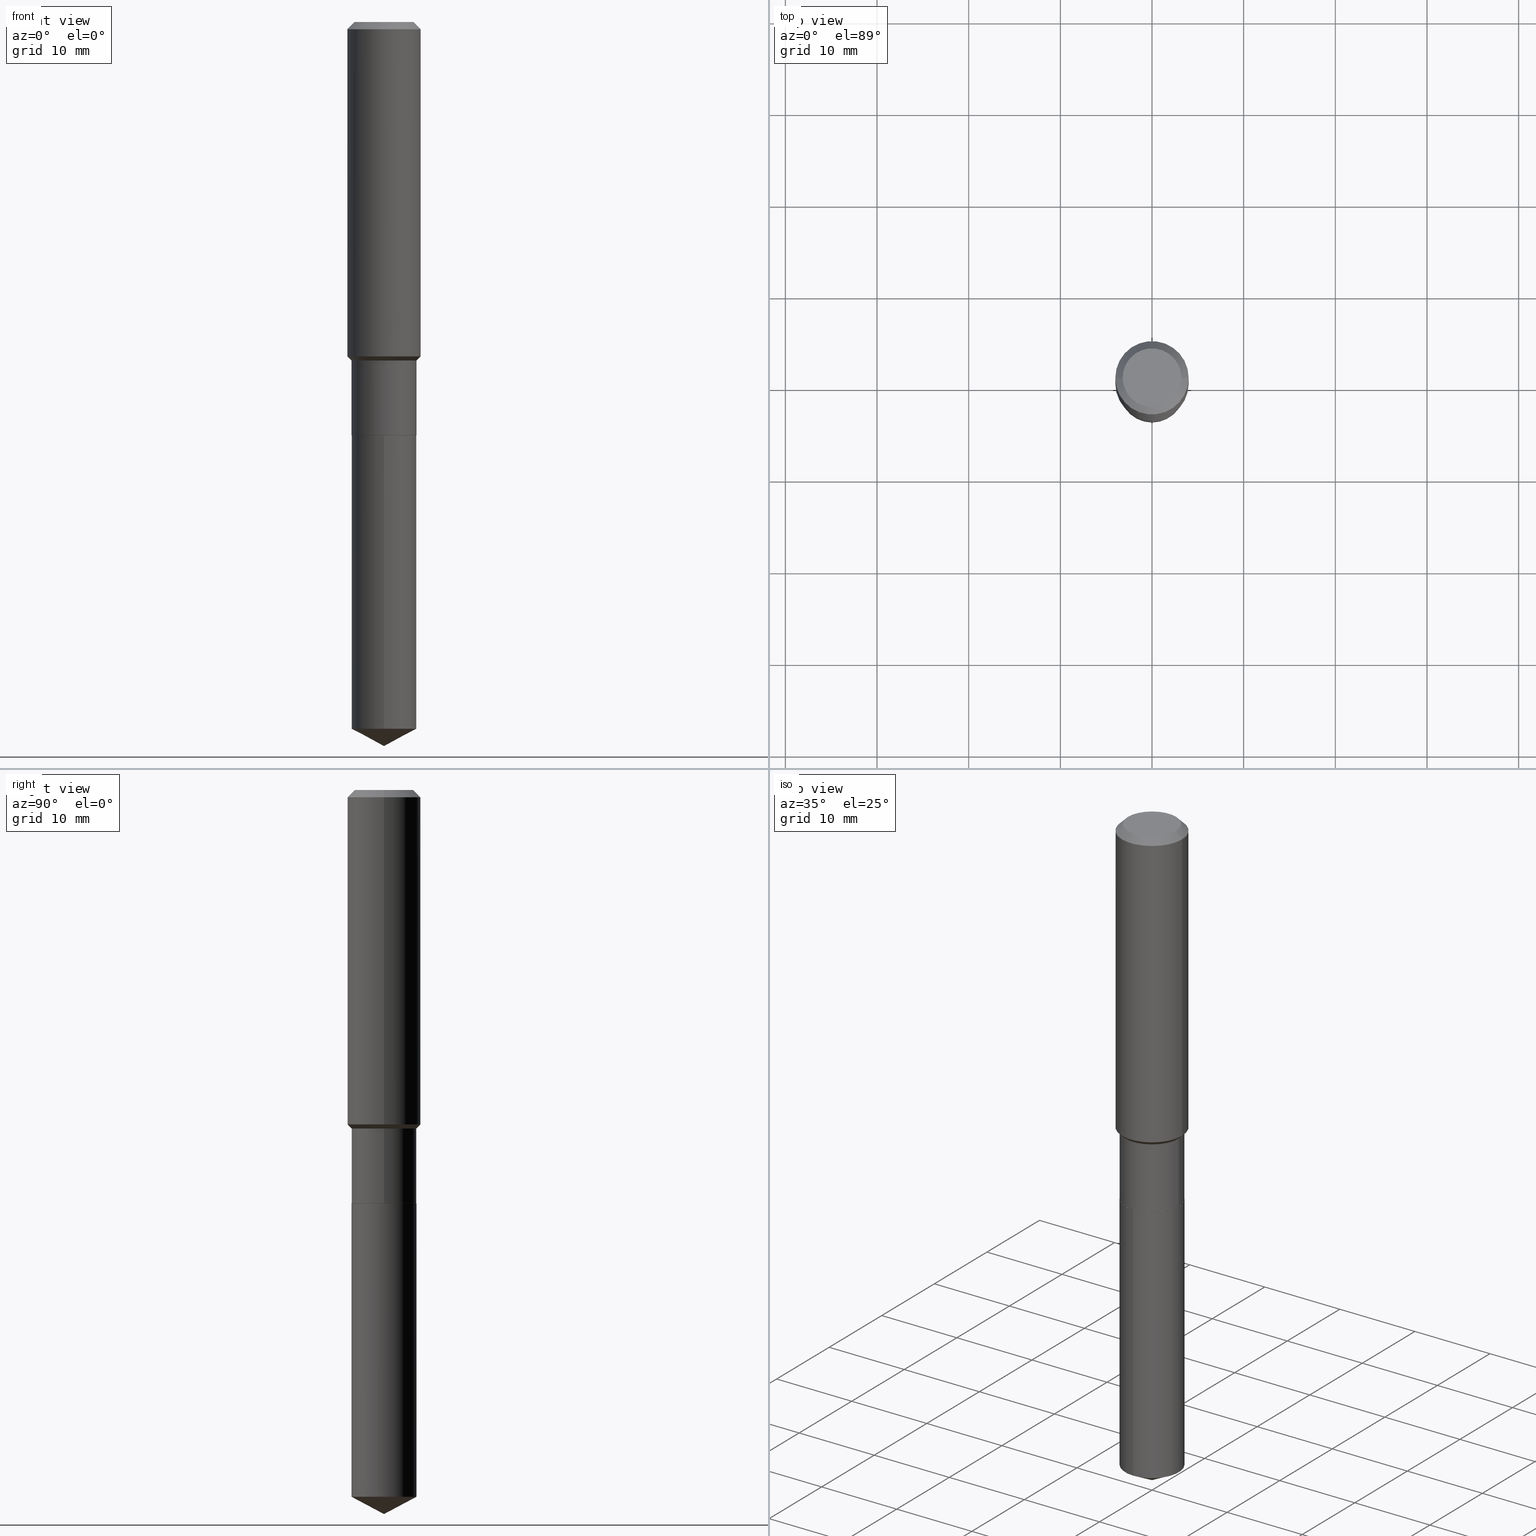
[diagram: canonical four-view strip — front | top / right | iso, engineering-drawing reading convention]
A machine part, canonical four-view strip (front | top / right | iso — engineering-drawing reading convention). The complete STEP part file that produces these views, byte-faithful:
ISO-10303-21;
HEADER;
FILE_DESCRIPTION (( 'STEP AP203' ),
    '1' );
FILE_NAME ('64641.STEP',
    '2024-04-24T18:32:47',
    ( '' ),
    ( '' ),
    'SwSTEP 2.0',
    'SolidWorks 2023',
    '' );
FILE_SCHEMA (( 'CONFIG_CONTROL_DESIGN' ));
ENDSEC;

DATA;
#1 = EDGE_CURVE ( 'NONE', #146, #72, #382, .T. ) ;
#2 = LINE ( 'NONE', #59, #132 ) ;
#3 = EDGE_CURVE ( 'NONE', #360, #380, #154, .T. ) ;
#4 = AXIS2_PLACEMENT_3D ( 'NONE', #18, #473, #225 ) ;
#5 = EDGE_CURVE ( 'NONE', #110, #112, #356, .T. ) ;
#6 = ADVANCED_FACE ( 'NONE', ( #369 ), #65, .T. ) ;
#7 = DIRECTION ( 'NONE',  ( -1.000000000000000000, 6.982962677686265922E-15, -4.876176775795935793E-29 ) ) ;
#8 = DIRECTION ( 'NONE',  ( -2.438088387897960049E-29, 3.491481338843145188E-15, 1.000000000000000000 ) ) ;
#9 = VERTEX_POINT ( 'NONE', #49 ) ;
#10 = ORIENTED_EDGE ( 'NONE', *, *, #5, .F. ) ;
#11 = CARTESIAN_POINT ( 'NONE',  ( 4.340707130978617347E-29, -6.197379376446583794E-15, -1.775000000000000133 ) ) ;
#12 = AXIS2_PLACEMENT_3D ( 'NONE', #344, #17, #315 ) ;
#13 = LINE ( 'NONE', #167, #375 ) ;
#14 = DIRECTION ( 'NONE',  ( -2.445468806185136597E-29, 3.491481338843145583E-15, 1.000000000000000000 ) ) ;
#15 = CARTESIAN_POINT ( 'NONE',  ( -8.866753248590977221E-28, 1.266076639284877967E-13, 36.25987874015748247 ) ) ;
#16 = ORIENTED_EDGE ( 'NONE', *, *, #46, .F. ) ;
#17 = DIRECTION ( 'NONE',  ( -2.445468806185136597E-29, 3.491481338843145583E-15, 1.000000000000000000 ) ) ;
#18 = CARTESIAN_POINT ( 'NONE',  ( -8.866753248590977221E-28, 1.266076639284877967E-13, 36.25987874015748247 ) ) ;
#19 = VECTOR ( 'NONE', #48, 39.37007874015748143 ) ;
#20 = ADVANCED_FACE ( 'NONE', ( #209 ), #113, .T. ) ;
#21 = VERTEX_POINT ( 'NONE', #301 ) ;
#22 = DIRECTION ( 'NONE',  ( -6.982962677686265133E-15, -1.000000000000000000, 3.909621457837943227E-15 ) ) ;
#23 = ORIENTED_EDGE ( 'NONE', *, *, #158, .F. ) ;
#24 = DIRECTION ( 'NONE',  ( 1.000000000000000000, -6.982962677686265922E-15, 4.876281427513067258E-29 ) ) ;
#25 = CARTESIAN_POINT ( 'NONE',  ( -0.1575000000000001676, -3.895884412225194097E-15, -1.436350000000000016 ) ) ;
#26 = DIRECTION ( 'NONE',  ( -2.445340770409964636E-29, 3.491664693360535590E-15, 1.000000000000000000 ) ) ;
#27 = PERSON_AND_ORGANIZATION_ROLE ( 'classification_officer' ) ;
#28 = FACE_OUTER_BOUND ( 'NONE', #148, .T. ) ;
#29 = EDGE_CURVE ( 'NONE', #108, #215, #160, .T. ) ;
#30 = APPROVAL_ROLE ( '' ) ;
#31 = ORIENTED_EDGE ( 'NONE', *, *, #78, .T. ) ;
#32 = VECTOR ( 'NONE', #285, 39.37007874015748854 ) ;
#33 = EDGE_CURVE ( 'NONE', #21, #108, #151, .T. ) ;
#34 = MECHANICAL_CONTEXT ( 'NONE', #280, 'mechanical' ) ;
#35 = CARTESIAN_POINT ( 'NONE',  ( 7.605498864129072648E-29, -1.085977552928993678E-14, -3.110199999999999854 ) ) ;
#36 = DIRECTION ( 'NONE',  ( 1.000000000000000000, -6.982962677686265922E-15, 0.000000000000000000 ) ) ;
#37 = DIRECTION ( 'NONE',  ( -2.445468806185136597E-29, 3.491481338843145583E-15, 1.000000000000000000 ) ) ;
#38 = ORIENTED_EDGE ( 'NONE', *, *, #118, .T. ) ;
#39 = UNCERTAINTY_MEASURE_WITH_UNIT (LENGTH_MEASURE( 1.000000000000000082E-05 ), #238, 'distance_accuracy_value', 'NONE');
#40 = EDGE_CURVE ( 'NONE', #21, #289, #488, .T. ) ;
#41 = CARTESIAN_POINT ( 'NONE',  ( 7.703226739483228723E-31, -1.099816621735597661E-16, -0.03150000000000019451 ) ) ;
#42 = ADVANCED_FACE ( 'NONE', ( #452 ), #104, .T. ) ;
#43 = AXIS2_PLACEMENT_3D ( 'NONE', #195, #84, #341 ) ;
#44 = FACE_OUTER_BOUND ( 'NONE', #291, .T. ) ;
#45 = DIRECTION ( 'NONE',  ( -6.982962677686265133E-15, -1.000000000000000000, 3.909621457837943227E-15 ) ) ;
#46 = EDGE_CURVE ( 'NONE', #289, #215, #359, .T. ) ;
#47 = AXIS2_PLACEMENT_3D ( 'NONE', #64, #283, #139 ) ;
#48 = DIRECTION ( 'NONE',  ( 0.7071067811863905872, -2.468850131080613074E-15, 0.7071067811867044473 ) ) ;
#49 = CARTESIAN_POINT ( 'NONE',  ( -9.758690342066122119E-16, -0.1397500000000062026, -1.775499999999999412 ) ) ;
#50 =( NAMED_UNIT ( * ) PLANE_ANGLE_UNIT ( ) SI_UNIT ( $, .RADIAN. ) );
#51 = DIRECTION ( 'NONE',  ( 1.000000000000000000, -6.982962677686269077E-15, 0.000000000000000000 ) ) ;
#52 = FACE_OUTER_BOUND ( 'NONE', #103, .T. ) ;
#53 = VECTOR ( 'NONE', #410, 39.37007874015748143 ) ;
#54 = AXIS2_PLACEMENT_3D ( 'NONE', #378, #377, #300 ) ;
#55 = ORIENTED_EDGE ( 'NONE', *, *, #5, .T. ) ;
#56 = EDGE_LOOP ( 'NONE', ( #446, #296 ) ) ;
#57 = ORIENTED_EDGE ( 'NONE', *, *, #33, .T. ) ;
#58 = CARTESIAN_POINT ( 'NONE',  ( 1.909604190169210274E-29, -9.682353923400312483E-15, -1.775500000000000300 ) ) ;
#59 = CARTESIAN_POINT ( 'NONE',  ( 0.1397499999999999298, -6.052832049018473832E-15, -1.454100000000000170 ) ) ;
#60 = CARTESIAN_POINT ( 'NONE',  ( 0.000000000000000000, 0.000000000000000000, 0.000000000000000000 ) ) ;
#61 = APPLICATION_CONTEXT ( 'configuration controlled 3d designs of mechanical parts and assemblies' ) ;
#62 = ORIENTED_EDGE ( 'NONE', *, *, #235, .F. ) ;
#63 = APPLICATION_PROTOCOL_DEFINITION ( 'international standard', 'config_control_design', 1994, #280 ) ;
#64 = CARTESIAN_POINT ( 'NONE',  ( 0.000000000000000000, 0.000000000000000000, 0.000000000000000000 ) ) ;
#65 = CONICAL_SURFACE ( 'NONE', #205, 0.1392500000000000127, 0.7853981633972263454 ) ;
#66 = PRODUCT_DEFINITION_FORMATION_WITH_SPECIFIED_SOURCE ( 'ANY', '', #121, .NOT_KNOWN. ) ;
#67 = FACE_OUTER_BOUND ( 'NONE', #246, .T. ) ;
#68 = APPROVAL_STATUS ( 'not_yet_approved' ) ;
#69 = ORIENTED_EDGE ( 'NONE', *, *, #486, .F. ) ;
#70 = COORDINATED_UNIVERSAL_TIME_OFFSET ( 5, 0, .BEHIND. ) ;
#71 = CARTESIAN_POINT ( 'NONE',  ( -0.1392500000000000127, -5.209694357570065896E-15, -1.775500000000000300 ) ) ;
#72 = VERTEX_POINT ( 'NONE', #245 ) ;
#73 = ORIENTED_EDGE ( 'NONE', *, *, #355, .T. ) ;
#74 = ORIENTED_EDGE ( 'NONE', *, *, #275, .T. ) ;
#75 = CIRCLE ( 'NONE', #114, 0.1397499999999999853 ) ;
#76 = FACE_OUTER_BOUND ( 'NONE', #254, .T. ) ;
#77 = DIRECTION ( 'NONE',  ( -6.982962677686266711E-15, -1.000000000000000000, 3.541896320645571124E-15 ) ) ;
#78 = EDGE_CURVE ( 'NONE', #403, #72, #265, .T. ) ;
#79 = CARTESIAN_POINT ( 'NONE',  ( 9.929834732248144530E-16, 0.1397499999999938236, -1.775500000000000522 ) ) ;
#80 = AXIS2_PLACEMENT_3D ( 'NONE', #318, #438, #478 ) ;
#81 = CONICAL_SURFACE ( 'NONE', #489, 0.1575000000000000011, 0.7853981633974449483 ) ;
#82 = CARTESIAN_POINT ( 'NONE',  ( 4.341929865381710149E-29, -6.199125117116004508E-15, -1.775499999999999856 ) ) ;
#83 = CC_DESIGN_DATE_AND_TIME_ASSIGNMENT ( #284, #372, ( #396 ) ) ;
#84 = DIRECTION ( 'NONE',  ( -2.445468806185136597E-29, 3.491481338843145583E-15, 1.000000000000000000 ) ) ;
#85 = CARTESIAN_POINT ( 'NONE',  ( -4.719860820353100843E-47, 6.738710358733633822E-33, 1.930043355456229866E-18 ) ) ;
#86 = CARTESIAN_POINT ( 'NONE',  ( 4.341929865381710709E-29, -6.199125117116005297E-15, -1.775500000000000300 ) ) ;
#87 = CARTESIAN_POINT ( 'NONE',  ( -0.1575000000000000011, 9.898349595620272334E-16, -0.03150000000000019451 ) ) ;
#88 = VECTOR ( 'NONE', #274, 39.37007874015748143 ) ;
#89 = APPROVAL_PERSON_ORGANIZATION ( #326, #342, #30 ) ;
#90 = DIRECTION ( 'NONE',  ( -2.445340770409964636E-29, 3.491664693360535195E-15, 1.000000000000000000 ) ) ;
#91 = DIMENSIONAL_EXPONENTS ( 1.000000000000000000, 0.000000000000000000, 0.000000000000000000, 0.000000000000000000, 0.000000000000000000, 0.000000000000000000, 0.000000000000000000 ) ;
#92 = EDGE_CURVE ( 'NONE', #289, #262, #175, .T. ) ;
#93 = ORIENTED_EDGE ( 'NONE', *, *, #116, .F. ) ;
#94 = DIRECTION ( 'NONE',  ( 1.000000000000000000, -6.982962677686265922E-15, 4.876176775795935793E-29 ) ) ;
#95 = EDGE_LOOP ( 'NONE', ( #228, #485, #400, #334 ) ) ;
#96 = CARTESIAN_POINT ( 'NONE',  ( -0.1260000000000000009, 9.348441284752484904E-16, 3.860086710906114178E-18 ) ) ;
#97 = CIRCLE ( 'NONE', #123, 0.1397499999999999298 ) ;
#98 = APPROVAL_PERSON_ORGANIZATION ( #101, #163, #172 ) ;
#99 = CC_DESIGN_PERSON_AND_ORGANIZATION_ASSIGNMENT ( #481, #176, ( #66 ) ) ;
#100 = ORIENTED_EDGE ( 'NONE', *, *, #187, .T. ) ;
#101 = PERSON_AND_ORGANIZATION ( #391, #197 ) ;
#102 = ADVANCED_FACE ( 'NONE', ( #67 ), #219, .T. ) ;
#103 = EDGE_LOOP ( 'NONE', ( #330, #100 ) ) ;
#104 = CYLINDRICAL_SURFACE ( 'NONE', #80, 0.1397500000000000131 ) ;
#105 = DIRECTION ( 'NONE',  ( 0.000000000000000000, 0.000000000000000000, 1.000000000000000000 ) ) ;
#106 = CIRCLE ( 'NONE', #384, 0.1397500000000000131 ) ;
#107 = SECURITY_CLASSIFICATION_LEVEL ( 'unclassified' ) ;
#108 = VERTEX_POINT ( 'NONE', #462 ) ;
#109 = CARTESIAN_POINT ( 'NONE',  ( 0.000000000000000000, 0.000000000000000000, 0.000000000000000000 ) ) ;
#110 = VERTEX_POINT ( 'NONE', #387 ) ;
#111 = DIRECTION ( 'NONE',  ( -0.7071067811863905872, 7.493145998869786180E-15, 0.7071067811867044473 ) ) ;
#112 = VERTEX_POINT ( 'NONE', #454 ) ;
#113 = CONICAL_SURFACE ( 'NONE', #442, 74.04434902938332641, 1.082104136236485381 ) ;
#114 = AXIS2_PLACEMENT_3D ( 'NONE', #11, #198, #348 ) ;
#115 = CC_DESIGN_DATE_AND_TIME_ASSIGNMENT ( #440, #276, ( #328 ) ) ;
#116 = EDGE_CURVE ( 'NONE', #112, #380, #190, .T. ) ;
#117 = DIRECTION ( 'NONE',  ( -2.445468806185136597E-29, 3.491481338843145583E-15, 1.000000000000000000 ) ) ;
#118 = EDGE_CURVE ( 'NONE', #9, #214, #106, .T. ) ;
#119 = AXIS2_PLACEMENT_3D ( 'NONE', #221, #402, #248 ) ;
#120 = FACE_OUTER_BOUND ( 'NONE', #126, .T. ) ;
#121 = PRODUCT ( '64641', '64641', '', ( #34 ) ) ;
#122 = DIRECTION ( 'NONE',  ( 1.000000000000000000, -6.982962677686267499E-15, 0.000000000000000000 ) ) ;
#123 = AXIS2_PLACEMENT_3D ( 'NONE', #308, #467, #51 ) ;
#124 = CARTESIAN_POINT ( 'NONE',  ( 9.929834732248142558E-16, 0.1397499999999894382, -3.035893606925309296 ) ) ;
#125 = EDGE_CURVE ( 'NONE', #262, #110, #191, .T. ) ;
#126 = EDGE_LOOP ( 'NONE', ( #450, #332, #346, #130 ) ) ;
#127 = DIRECTION ( 'NONE',  ( 2.438088387897960049E-29, -3.491481338843145188E-15, -1.000000000000000000 ) ) ;
#128 = DIRECTION ( 'NONE',  ( -2.445468806185136597E-29, 3.491481338843145583E-15, 1.000000000000000000 ) ) ;
#129 = ADVANCED_FACE ( 'NONE', ( #120 ), #327, .T. ) ;
#130 = ORIENTED_EDGE ( 'NONE', *, *, #3, .F. ) ;
#131 = CARTESIAN_POINT ( 'NONE',  ( -0.1575000000000000011, -1.443380632788297581E-15, -0.03150000000000019451 ) ) ;
#132 = VECTOR ( 'NONE', #134, 39.37007874015748143 ) ;
#133 = PERSON_AND_ORGANIZATION ( #391, #197 ) ;
#134 = DIRECTION ( 'NONE',  ( 0.7071067811865499042, -2.468850131082281515E-15, 0.7071067811865451302 ) ) ;
#135 = ORIENTED_EDGE ( 'NONE', *, *, #270, .T. ) ;
#136 = DIRECTION ( 'NONE',  ( -6.982962677686265133E-15, -1.000000000000000000, 3.909621457837943227E-15 ) ) ;
#137 = ORIENTED_EDGE ( 'NONE', *, *, #125, .T. ) ;
#138 = APPROVAL_DATE_TIME ( #435, #316 ) ;
#139 = DIRECTION ( 'NONE',  ( 1.000000000000000000, -6.982962677686265922E-15, 4.876176775795935232E-29 ) ) ;
#140 = CLOSED_SHELL ( 'NONE', ( #102, #20, #269, #42, #212 ) ) ;
#141 = CIRCLE ( 'NONE', #226, 0.1575000000000001676 ) ;
#142 = CARTESIAN_POINT ( 'NONE',  ( 3.555956191073807244E-29, -5.076963014811818627E-15, -1.454100000000000170 ) ) ;
#143 = ORIENTED_EDGE ( 'NONE', *, *, #347, .F. ) ;
#144 = CALENDAR_DATE ( 2024, 24, 4 ) ;
#145 = MANIFOLD_SOLID_BREP ( 'Body-Move/Copy2[2]', #250 ) ;
#146 = VERTEX_POINT ( 'NONE', #421 ) ;
#147 = ORIENTED_EDGE ( 'NONE', *, *, #486, .T. ) ;
#148 = EDGE_LOOP ( 'NONE', ( #461, #62, #471, #417 ) ) ;
#149 = CARTESIAN_POINT ( 'NONE',  ( -0.1397499999999999298, -4.644187722404462094E-15, -1.454100000000000170 ) ) ;
#150 = ADVANCED_FACE ( 'NONE', ( #44 ), #383, .T. ) ;
#151 = CIRCLE ( 'NONE', #173, 0.1397499999999999853 ) ;
#152 = AXIS2_PLACEMENT_3D ( 'NONE', #302, #455, #268 ) ;
#153 = CARTESIAN_POINT ( 'NONE',  ( -0.1397499999999999576, 9.929834732247397084E-16, -6.874211788631229584E-30 ) ) ;
#154 = LINE ( 'NONE', #87, #433 ) ;
#155 = DIRECTION ( 'NONE',  ( -1.000000000000000000, 6.982962677686265922E-15, 0.000000000000000000 ) ) ;
#156 = DIRECTION ( 'NONE',  ( 1.000000000000000000, -6.982962677686265922E-15, 0.000000000000000000 ) ) ;
#157 = FACE_OUTER_BOUND ( 'NONE', #317, .T. ) ;
#158 = EDGE_CURVE ( 'NONE', #380, #112, #426, .T. ) ;
#159 =( GEOMETRIC_REPRESENTATION_CONTEXT ( 3 ) GLOBAL_UNCERTAINTY_ASSIGNED_CONTEXT ( ( #39 ) ) GLOBAL_UNIT_ASSIGNED_CONTEXT ( ( #238, #50, #213 ) ) REPRESENTATION_CONTEXT ( 'NONE', 'WORKASPACE' ) );
#160 = LINE ( 'NONE', #229, #476 ) ;
#161 = PLANE ( 'NONE',  #237 ) ;
#162 = ADVANCED_BREP_SHAPE_REPRESENTATION ( '64641', ( #292, #145, #490 ), #159 ) ;
#163 = APPROVAL ( #68, 'UNSPECIFIED' ) ;
#164 = CARTESIAN_POINT ( 'NONE',  ( 0.1392500000000000127, -7.171502669983817495E-15, -1.775500000000000300 ) ) ;
#165 = AXIS2_PLACEMENT_3D ( 'NONE', #386, #37, #192 ) ;
#166 = DIRECTION ( 'NONE',  ( -2.445468806185136597E-29, 3.491481338843145583E-15, 1.000000000000000000 ) ) ;
#167 = CARTESIAN_POINT ( 'NONE',  ( -9.758690342066122119E-16, -0.1397500000000062026, -1.775499999999999412 ) ) ;
#168 = EDGE_CURVE ( 'NONE', #146, #403, #368, .T. ) ;
#169 = DIRECTION ( 'NONE',  ( 1.000000000000000000, -6.982962677686267499E-15, 0.000000000000000000 ) ) ;
#170 = ORIENTED_EDGE ( 'NONE', *, *, #441, .T. ) ;
#171 = DIRECTION ( 'NONE',  ( -2.445468806185136597E-29, 3.491481338843145583E-15, 1.000000000000000000 ) ) ;
#172 = APPROVAL_ROLE ( '' ) ;
#173 = AXIS2_PLACEMENT_3D ( 'NONE', #260, #381, #36 ) ;
#174 = AXIS2_PLACEMENT_3D ( 'NONE', #409, #177, #251 ) ;
#175 = LINE ( 'NONE', #320, #303 ) ;
#176 = PERSON_AND_ORGANIZATION_ROLE ( 'creator' ) ;
#177 = DIRECTION ( 'NONE',  ( -2.445340770409964636E-29, 3.491664693360535590E-15, 1.000000000000000000 ) ) ;
#178 = ORIENTED_EDGE ( 'NONE', *, *, #1, .F. ) ;
#179 = CARTESIAN_POINT ( 'NONE',  ( 0.1575000000000000844, -1.099816621735587677E-15, 7.679978421878603638E-30 ) ) ;
#180 = EDGE_LOOP ( 'NONE', ( #178, #418, #183 ) ) ;
#181 = PERSON_AND_ORGANIZATION ( #391, #197 ) ;
#182 = CONICAL_SURFACE ( 'NONE', #319, 0.1397499999999999298, 0.7853981633974517207 ) ;
#183 = ORIENTED_EDGE ( 'NONE', *, *, #270, .F. ) ;
#184 = CC_DESIGN_SECURITY_CLASSIFICATION ( #328, ( #66 ) ) ;
#185 = ORIENTED_EDGE ( 'NONE', *, *, #118, .F. ) ;
#186 = CC_DESIGN_PERSON_AND_ORGANIZATION_ASSIGNMENT ( #484, #472, ( #66 ) ) ;
#187 = EDGE_CURVE ( 'NONE', #436, #360, #434, .T. ) ;
#188 = DIRECTION ( 'NONE',  ( 2.445468806185136597E-29, -3.491481338843145583E-15, -1.000000000000000000 ) ) ;
#189 = DIRECTION ( 'NONE',  ( -6.165590087286829718E-15, -0.8829475928589257672, 0.4694715627858929707 ) ) ;
#190 = CIRCLE ( 'NONE', #310, 0.1575000000000000011 ) ;
#191 = CIRCLE ( 'NONE', #43, 0.1575000000000001676 ) ;
#192 = DIRECTION ( 'NONE',  ( 1.000000000000000000, -6.982962677686267499E-15, 4.876176775795936353E-29 ) ) ;
#193 = DIRECTION ( 'NONE',  ( -2.445468806185136597E-29, 3.491481338843145583E-15, 1.000000000000000000 ) ) ;
#194 = FACE_OUTER_BOUND ( 'NONE', #256, .T. ) ;
#195 = CARTESIAN_POINT ( 'NONE',  ( 3.512549119764021199E-29, -5.014989221047352489E-15, -1.436350000000000016 ) ) ;
#196 = CARTESIAN_POINT ( 'NONE',  ( 4.341929865381710149E-29, -6.199125117116004508E-15, -1.775499999999999856 ) ) ;
#197 = ORGANIZATION ( 'UNSPECIFIED', 'UNSPECIFIED', '' ) ;
#198 = DIRECTION ( 'NONE',  ( -2.445468806185136597E-29, 3.491481338843145583E-15, 1.000000000000000000 ) ) ;
#199 = EDGE_CURVE ( 'NONE', #214, #9, #252, .T. ) ;
#200 = ADVANCED_FACE ( 'NONE', ( #28 ), #81, .T. ) ;
#201 = CARTESIAN_POINT ( 'NONE',  ( 4.341929865381710709E-29, -6.199125117116005297E-15, -1.775500000000000300 ) ) ;
#202 = ORIENTED_EDGE ( 'NONE', *, *, #29, .T. ) ;
#203 = DIRECTION ( 'NONE',  ( 1.000000000000000000, -6.982962677686267499E-15, 0.000000000000000000 ) ) ;
#204 = LINE ( 'NONE', #459, #88 ) ;
#205 = AXIS2_PLACEMENT_3D ( 'NONE', #86, #325, #169 ) ;
#206 = VECTOR ( 'NONE', #432, 39.37007874015748143 ) ;
#207 = CARTESIAN_POINT ( 'NONE',  ( -0.1575000000000000844, 1.119104808822158392E-15, -7.747322767151481189E-30 ) ) ;
#208 = CC_DESIGN_APPROVAL ( #163, ( #328 ) ) ;
#209 = FACE_OUTER_BOUND ( 'NONE', #180, .T. ) ;
#210 = ORIENTED_EDGE ( 'NONE', *, *, #168, .F. ) ;
#211 = DIRECTION ( 'NONE',  ( 1.000000000000000000, -6.982962677686269077E-15, 0.000000000000000000 ) ) ;
#212 = ADVANCED_FACE ( 'NONE', ( #157 ), #299, .F. ) ;
#213 =( NAMED_UNIT ( * ) SI_UNIT ( $, .STERADIAN. ) SOLID_ANGLE_UNIT ( ) );
#214 = VERTEX_POINT ( 'NONE', #79 ) ;
#215 = VERTEX_POINT ( 'NONE', #457 ) ;
#216 = DIRECTION ( 'NONE',  ( -0.7071067811865451302, 2.468850131082231817E-15, -0.7071067811865499042 ) ) ;
#217 = APPROVAL_ROLE ( '' ) ;
#218 = VECTOR ( 'NONE', #111, 39.37007874015748143 ) ;
#219 = CYLINDRICAL_SURFACE ( 'NONE', #236, 0.1397500000000000131 ) ;
#220 = ORIENTED_EDGE ( 'NONE', *, *, #331, .T. ) ;
#221 = CARTESIAN_POINT ( 'NONE',  ( 7.703226739483228723E-31, -1.099816621735597661E-16, -0.03150000000000019451 ) ) ;
#222 = VERTEX_POINT ( 'NONE', #257 ) ;
#223 = ORIENTED_EDGE ( 'NONE', *, *, #275, .F. ) ;
#224 = DIRECTION ( 'NONE',  ( 1.000000000000000000, 0.000000000000000000, 0.000000000000000000 ) ) ;
#225 = DIRECTION ( 'NONE',  ( -6.982962677686266711E-15, -1.000000000000000000, 3.541896320645571124E-15 ) ) ;
#226 = AXIS2_PLACEMENT_3D ( 'NONE', #271, #128, #394 ) ;
#227 = CYLINDRICAL_SURFACE ( 'NONE', #165, 0.1575000000000000844 ) ;
#228 = ORIENTED_EDGE ( 'NONE', *, *, #92, .F. ) ;
#229 = CARTESIAN_POINT ( 'NONE',  ( 0.1397499999999999576, -9.758690342066554020E-16, 6.814457044174817776E-30 ) ) ;
#230 = DIRECTION ( 'NONE',  ( -2.445468806185136597E-29, 3.491481338843145583E-15, 1.000000000000000000 ) ) ;
#231 = CC_DESIGN_PERSON_AND_ORGANIZATION_ASSIGNMENT ( #447, #255, ( #396 ) ) ;
#232 = CARTESIAN_POINT ( 'NONE',  ( -9.439721640706201686E-47, 1.347742071746726764E-32, 3.860086710912459732E-18 ) ) ;
#233 = DIRECTION ( 'NONE',  ( -2.445340770409964636E-29, 3.491664693360535590E-15, 1.000000000000000000 ) ) ;
#234 = DIRECTION ( 'NONE',  ( 1.000000000000000000, -6.982962677686267499E-15, 0.000000000000000000 ) ) ;
#235 = EDGE_CURVE ( 'NONE', #360, #436, #406, .T. ) ;
#236 = AXIS2_PLACEMENT_3D ( 'NONE', #365, #26, #136 ) ;
#237 = AXIS2_PLACEMENT_3D ( 'NONE', #58, #8, #94 ) ;
#238 =( CONVERSION_BASED_UNIT ( 'INCH', #397 ) LENGTH_UNIT ( ) NAMED_UNIT ( #91 ) );
#239 = EDGE_LOOP ( 'NONE', ( #243, #31, #414, #466 ) ) ;
#240 = LINE ( 'NONE', #164, #19 ) ;
#241 = CARTESIAN_POINT ( 'NONE',  ( 0.1260000000000000009, -1.027466422270894443E-15, 3.860086710919128072E-18 ) ) ;
#242 = AXIS2_PLACEMENT_3D ( 'NONE', #361, #405, #22 ) ;
#243 = ORIENTED_EDGE ( 'NONE', *, *, #373, .F. ) ;
#244 = SHAPE_DEFINITION_REPRESENTATION ( #313, #162 ) ;
#245 = CARTESIAN_POINT ( 'NONE',  ( -9.758690342065818408E-16, -0.1397500000000106157, -3.035893606925307964 ) ) ;
#246 = EDGE_LOOP ( 'NONE', ( #135, #437, #185, #482 ) ) ;
#247 = EDGE_CURVE ( 'NONE', #215, #110, #2, .T. ) ;
#248 = DIRECTION ( 'NONE',  ( 1.000000000000000000, -6.982962677686265922E-15, 0.000000000000000000 ) ) ;
#249 = CALENDAR_DATE ( 2024, 24, 4 ) ;
#250 = CLOSED_SHELL ( 'NONE', ( #6, #129, #263, #288, #415, #150, #371, #277, #200, #430, #335, #483 ) ) ;
#251 = DIRECTION ( 'NONE',  ( -6.982962677686265133E-15, -1.000000000000000000, 3.909621457837943227E-15 ) ) ;
#252 = CIRCLE ( 'NONE', #174, 0.1397500000000000131 ) ;
#253 = PERSON_AND_ORGANIZATION ( #391, #197 ) ;
#254 = EDGE_LOOP ( 'NONE', ( #449, #137, #55, #23 ) ) ;
#255 = PERSON_AND_ORGANIZATION_ROLE ( 'creator' ) ;
#256 = EDGE_LOOP ( 'NONE', ( #220, #264, #69, #293 ) ) ;
#257 = CARTESIAN_POINT ( 'NONE',  ( 0.1392500000000000127, -7.171502669983817495E-15, -1.775500000000000300 ) ) ;
#258 = CARTESIAN_POINT ( 'NONE',  ( 4.341929865381710709E-29, -6.199125117116005297E-15, -1.775500000000000300 ) ) ;
#259 = CONICAL_SURFACE ( 'NONE', #4, 74.04434902938332641, 1.082104136236485381 ) ;
#260 = CARTESIAN_POINT ( 'NONE',  ( 4.340707130978617347E-29, -6.197379376446583794E-15, -1.775000000000000133 ) ) ;
#261 = CARTESIAN_POINT ( 'NONE',  ( 3.555956191073807244E-29, -5.076963014811818627E-15, -1.454100000000000170 ) ) ;
#262 = VERTEX_POINT ( 'NONE', #25 ) ;
#263 = ADVANCED_FACE ( 'NONE', ( #322 ), #352, .T. ) ;
#264 = ORIENTED_EDGE ( 'NONE', *, *, #92, .T. ) ;
#265 = CIRCLE ( 'NONE', #242, 0.1397500000000000131 ) ;
#266 = AXIS2_PLACEMENT_3D ( 'NONE', #314, #306, #122 ) ;
#267 = CONICAL_SURFACE ( 'NONE', #266, 0.1392500000000000127, 0.7853981633972263454 ) ;
#268 = DIRECTION ( 'NONE',  ( -1.000000000000000000, 6.982962677686265922E-15, 0.000000000000000000 ) ) ;
#269 = ADVANCED_FACE ( 'NONE', ( #358 ), #259, .T. ) ;
#270 = EDGE_CURVE ( 'NONE', #72, #403, #451, .T. ) ;
#271 = CARTESIAN_POINT ( 'NONE',  ( 3.512549119764021199E-29, -5.014989221047352489E-15, -1.436350000000000016 ) ) ;
#272 = ORIENTED_EDGE ( 'NONE', *, *, #416, .T. ) ;
#273 = DIRECTION ( 'NONE',  ( -2.445468806185136597E-29, 3.491481338843145583E-15, 1.000000000000000000 ) ) ;
#274 = DIRECTION ( 'NONE',  ( -2.445340770409964636E-29, 3.491664693360535195E-15, 1.000000000000000000 ) ) ;
#275 = EDGE_CURVE ( 'NONE', #333, #21, #412, .T. ) ;
#276 = DATE_TIME_ROLE ( 'classification_date' ) ;
#277 = ADVANCED_FACE ( 'NONE', ( #76 ), #227, .T. ) ;
#278 = DIRECTION ( 'NONE',  ( 1.000000000000000000, -6.982962677686269077E-15, 0.000000000000000000 ) ) ;
#279 = DIRECTION ( 'NONE',  ( 1.000000000000000000, -6.982962677686267499E-15, 4.876176775795936353E-29 ) ) ;
#280 = APPLICATION_CONTEXT ( 'configuration controlled 3d designs of mechanical parts and assemblies' ) ;
#281 = EDGE_LOOP ( 'NONE', ( #147, #170, #93, #10 ) ) ;
#282 = DATE_AND_TIME ( #363, #480 ) ;
#283 = DIRECTION ( 'NONE',  ( -2.445468806185136597E-29, 3.491481338843145583E-15, 1.000000000000000000 ) ) ;
#284 = DATE_AND_TIME ( #444, #407 ) ;
#285 = DIRECTION ( 'NONE',  ( 6.273719981627760554E-15, 0.8829475928589289868, 0.4694715627858866425 ) ) ;
#286 = AXIS2_PLACEMENT_3D ( 'NONE', #85, #127, #7 ) ;
#287 = LOCAL_TIME ( 14, 32, 47.00000000000000000, #70 ) ;
#288 = ADVANCED_FACE ( 'NONE', ( #194 ), #182, .T. ) ;
#289 = VERTEX_POINT ( 'NONE', #149 ) ;
#290 = DATE_AND_TIME ( #144, #287 ) ;
#291 = EDGE_LOOP ( 'NONE', ( #366, #57, #202, #16 ) ) ;
#292 = MANIFOLD_SOLID_BREP ( 'Body-Move/Copy2[1]', #140 ) ;
#293 = ORIENTED_EDGE ( 'NONE', *, *, #247, .F. ) ;
#294 = ORIENTED_EDGE ( 'NONE', *, *, #40, .T. ) ;
#295 = EDGE_LOOP ( 'NONE', ( #223, #487, #431, #321 ) ) ;
#296 = ORIENTED_EDGE ( 'NONE', *, *, #307, .F. ) ;
#297 = AXIS2_PLACEMENT_3D ( 'NONE', #232, #193, #340 ) ;
#298 = DIRECTION ( 'NONE',  ( -2.445468806185136877E-29, 3.491481338843145188E-15, 1.000000000000000000 ) ) ;
#299 = PLANE ( 'NONE',  #420 ) ;
#300 = DIRECTION ( 'NONE',  ( -6.982962677686265133E-15, -1.000000000000000000, 3.909621457837943227E-15 ) ) ;
#301 = CARTESIAN_POINT ( 'NONE',  ( -0.1397499999999999853, -4.644187722404462094E-15, -1.775000000000000133 ) ) ;
#302 = CARTESIAN_POINT ( 'NONE',  ( 7.703226739483228723E-31, -1.099816621735597661E-16, -0.03150000000000019451 ) ) ;
#303 = VECTOR ( 'NONE', #474, 39.37007874015748143 ) ;
#304 = PRODUCT_RELATED_PRODUCT_CATEGORY ( 'detail', '', ( #121 ) ) ;
#305 = AXIS2_PLACEMENT_3D ( 'NONE', #60, #14, #279 ) ;
#306 = DIRECTION ( 'NONE',  ( -2.445468806185136597E-29, 3.491481338843145583E-15, 1.000000000000000000 ) ) ;
#307 = EDGE_CURVE ( 'NONE', #333, #222, #337, .T. ) ;
#308 = CARTESIAN_POINT ( 'NONE',  ( 3.555956191073807244E-29, -5.076963014811818627E-15, -1.454100000000000170 ) ) ;
#309 = CARTESIAN_POINT ( 'NONE',  ( 3.555956191073807244E-29, -5.076963014811818627E-15, -1.454100000000000170 ) ) ;
#310 = AXIS2_PLACEMENT_3D ( 'NONE', #339, #117, #156 ) ;
#311 = AXIS2_PLACEMENT_3D ( 'NONE', #309, #166, #211 ) ;
#312 = CARTESIAN_POINT ( 'NONE',  ( 0.1575000000000000011, -1.190510096822576026E-15, -0.03150000000000019451 ) ) ;
#313 = PRODUCT_DEFINITION_SHAPE ( 'NONE', 'NONE',  #396 ) ;
#314 = CARTESIAN_POINT ( 'NONE',  ( 4.341929865381710709E-29, -6.199125117116005297E-15, -1.775500000000000300 ) ) ;
#315 = DIRECTION ( 'NONE',  ( 1.000000000000000000, -6.982962677686265922E-15, 4.876176775795935232E-29 ) ) ;
#316 = APPROVAL ( #475, 'UNSPECIFIED' ) ;
#317 = EDGE_LOOP ( 'NONE', ( #38, #439 ) ) ;
#318 = CARTESIAN_POINT ( 'NONE',  ( 4.341929865381710149E-29, -6.199125117116004508E-15, -1.775499999999999856 ) ) ;
#319 = AXIS2_PLACEMENT_3D ( 'NONE', #261, #230, #456 ) ;
#320 = CARTESIAN_POINT ( 'NONE',  ( -0.1397499999999999298, -4.083979541587079116E-15, -1.454100000000000170 ) ) ;
#321 = ORIENTED_EDGE ( 'NONE', *, *, #33, .F. ) ;
#322 = FACE_OUTER_BOUND ( 'NONE', #281, .T. ) ;
#323 = COORDINATED_UNIVERSAL_TIME_OFFSET ( 5, 0, .BEHIND. ) ;
#324 = CARTESIAN_POINT ( 'NONE',  ( 7.605957505954709888E-29, -1.085912443739868741E-14, -3.110199999999999854 ) ) ;
#325 = DIRECTION ( 'NONE',  ( -2.445468806185136597E-29, 3.491481338843145583E-15, 1.000000000000000000 ) ) ;
#326 = PERSON_AND_ORGANIZATION ( #391, #197 ) ;
#327 = CONICAL_SURFACE ( 'NONE', #152, 0.1575000000000000011, 0.7853981633974449483 ) ;
#328 = SECURITY_CLASSIFICATION ( '', '', #107 ) ;
#329 = APPROVAL_PERSON_ORGANIZATION ( #181, #316, #217 ) ;
#330 = ORIENTED_EDGE ( 'NONE', *, *, #235, .T. ) ;
#331 = EDGE_CURVE ( 'NONE', #215, #289, #97, .T. ) ;
#332 = ORIENTED_EDGE ( 'NONE', *, *, #398, .T. ) ;
#333 = VERTEX_POINT ( 'NONE', #458 ) ;
#334 = ORIENTED_EDGE ( 'NONE', *, *, #125, .F. ) ;
#335 = ADVANCED_FACE ( 'NONE', ( #345 ), #161, .F. ) ;
#336 = DESIGN_CONTEXT ( 'detailed design', #61, 'design' ) ;
#337 = CIRCLE ( 'NONE', #468, 0.1392500000000000127 ) ;
#338 = DIRECTION ( 'NONE',  ( -2.445468806185136877E-29, 3.491481338843145188E-15, 1.000000000000000000 ) ) ;
#339 = CARTESIAN_POINT ( 'NONE',  ( 7.703226739483228723E-31, -1.099816621735597661E-16, -0.03150000000000019451 ) ) ;
#340 = DIRECTION ( 'NONE',  ( 1.000000000000000000, -6.982962677686265922E-15, 4.876281427513067258E-29 ) ) ;
#341 = DIRECTION ( 'NONE',  ( 1.000000000000000000, -6.982962677686267499E-15, 0.000000000000000000 ) ) ;
#342 = APPROVAL ( #408, 'UNSPECIFIED' ) ;
#343 = DIRECTION ( 'NONE',  ( -2.445468806185136597E-29, 3.491481338843145583E-15, 1.000000000000000000 ) ) ;
#344 = CARTESIAN_POINT ( 'NONE',  ( 0.000000000000000000, 0.000000000000000000, 0.000000000000000000 ) ) ;
#345 = FACE_OUTER_BOUND ( 'NONE', #56, .T. ) ;
#346 = ORIENTED_EDGE ( 'NONE', *, *, #116, .T. ) ;
#347 = EDGE_CURVE ( 'NONE', #222, #108, #240, .T. ) ;
#348 = DIRECTION ( 'NONE',  ( 1.000000000000000000, -6.982962677686265922E-15, 0.000000000000000000 ) ) ;
#349 = VECTOR ( 'NONE', #351, 39.37007874015748143 ) ;
#350 = LOCAL_TIME ( 14, 32, 47.00000000000000000, #399 ) ;
#351 = DIRECTION ( 'NONE',  ( -2.445468806185136877E-29, 3.491481338843145188E-15, 1.000000000000000000 ) ) ;
#352 = CYLINDRICAL_SURFACE ( 'NONE', #305, 0.1575000000000000844 ) ;
#353 = ORIENTED_EDGE ( 'NONE', *, *, #1, .T. ) ;
#354 = CC_DESIGN_PERSON_AND_ORGANIZATION_ASSIGNMENT ( #133, #27, ( #328 ) ) ;
#355 = EDGE_CURVE ( 'NONE', #108, #21, #75, .T. ) ;
#356 = LINE ( 'NONE', #179, #53 ) ;
#357 = CALENDAR_DATE ( 2024, 24, 4 ) ;
#358 = FACE_OUTER_BOUND ( 'NONE', #370, .T. ) ;
#359 = CIRCLE ( 'NONE', #404, 0.1397499999999999298 ) ;
#360 = VERTEX_POINT ( 'NONE', #96 ) ;
#361 = CARTESIAN_POINT ( 'NONE',  ( 7.424021739160239396E-29, -1.059999697415444211E-14, -3.035893606925308408 ) ) ;
#362 = AXIS2_PLACEMENT_3D ( 'NONE', #201, #273, #234 ) ;
#363 = CALENDAR_DATE ( 2024, 24, 4 ) ;
#364 = CARTESIAN_POINT ( 'NONE',  ( -9.439721640706201686E-47, 1.347742071746726764E-32, 3.860086710912459732E-18 ) ) ;
#365 = CARTESIAN_POINT ( 'NONE',  ( 4.341929865381710149E-29, -6.199125117116004508E-15, -1.775499999999999856 ) ) ;
#366 = ORIENTED_EDGE ( 'NONE', *, *, #40, .F. ) ;
#367 = APPROVAL_DATE_TIME ( #282, #342 ) ;
#368 = LINE ( 'NONE', #324, #32 ) ;
#369 = FACE_OUTER_BOUND ( 'NONE', #379, .T. ) ;
#370 = EDGE_LOOP ( 'NONE', ( #210, #353, #448 ) ) ;
#371 = ADVANCED_FACE ( 'NONE', ( #390 ), #460, .T. ) ;
#372 = DATE_TIME_ROLE ( 'creation_date' ) ;
#373 = EDGE_CURVE ( 'NONE', #403, #214, #204, .T. ) ;
#374 = PERSON_AND_ORGANIZATION_ROLE ( 'design_owner' ) ;
#375 = VECTOR ( 'NONE', #90, 39.37007874015748143 ) ;
#376 = CC_DESIGN_APPROVAL ( #316, ( #396 ) ) ;
#377 = DIRECTION ( 'NONE',  ( -2.445340770409964636E-29, 3.491664693360535590E-15, 1.000000000000000000 ) ) ;
#378 = CARTESIAN_POINT ( 'NONE',  ( 7.424021739160239396E-29, -1.059999697415444211E-14, -3.035893606925308408 ) ) ;
#379 = EDGE_LOOP ( 'NONE', ( #272, #74, #393, #143 ) ) ;
#380 = VERTEX_POINT ( 'NONE', #131 ) ;
#381 = DIRECTION ( 'NONE',  ( -2.445468806185136597E-29, 3.491481338843145583E-15, 1.000000000000000000 ) ) ;
#382 = LINE ( 'NONE', #35, #477 ) ;
#383 = CYLINDRICAL_SURFACE ( 'NONE', #47, 0.1397499999999999576 ) ;
#384 = AXIS2_PLACEMENT_3D ( 'NONE', #82, #233, #45 ) ;
#385 = LOCAL_TIME ( 14, 32, 47.00000000000000000, #470 ) ;
#386 = CARTESIAN_POINT ( 'NONE',  ( 0.000000000000000000, 0.000000000000000000, 0.000000000000000000 ) ) ;
#387 = CARTESIAN_POINT ( 'NONE',  ( 0.1575000000000001676, -6.114805842782940758E-15, -1.436350000000000016 ) ) ;
#388 = DIRECTION ( 'NONE',  ( 2.445340770409964636E-29, -3.491664693360535195E-15, -1.000000000000000000 ) ) ;
#389 = DIRECTION ( 'NONE',  ( -2.445340770409964636E-29, 3.491664693360535590E-15, 1.000000000000000000 ) ) ;
#390 = FACE_OUTER_BOUND ( 'NONE', #95, .T. ) ;
#391 = PERSON ( 'UNSPECIFIED', 'UNSPECIFIED', 'UNSPECIFIED', ('UNSPECIFIED'), ('UNSPECIFIED'), ('UNSPECIFIED') ) ;
#392 = CIRCLE ( 'NONE', #362, 0.1392500000000000127 ) ;
#393 = ORIENTED_EDGE ( 'NONE', *, *, #355, .F. ) ;
#394 = DIRECTION ( 'NONE',  ( 1.000000000000000000, -6.982962677686267499E-15, 0.000000000000000000 ) ) ;
#395 = LINE ( 'NONE', #207, #349 ) ;
#396 = PRODUCT_DEFINITION ( 'UNKNOWN', '', #66, #336 ) ;
#397 = LENGTH_MEASURE_WITH_UNIT ( LENGTH_MEASURE( 0.02539999999999999897 ), #424 );
#398 = EDGE_CURVE ( 'NONE', #436, #112, #427, .T. ) ;
#399 = COORDINATED_UNIVERSAL_TIME_OFFSET ( 5, 0, .BEHIND. ) ;
#400 = ORIENTED_EDGE ( 'NONE', *, *, #247, .T. ) ;
#401 = COORDINATED_UNIVERSAL_TIME_OFFSET ( 5, 0, .BEHIND. ) ;
#402 = DIRECTION ( 'NONE',  ( -2.445468806185136597E-29, 3.491481338843145583E-15, 1.000000000000000000 ) ) ;
#403 = VERTEX_POINT ( 'NONE', #124 ) ;
#404 = AXIS2_PLACEMENT_3D ( 'NONE', #142, #171, #278 ) ;
#405 = DIRECTION ( 'NONE',  ( -2.445340770409964636E-29, 3.491664693360535590E-15, 1.000000000000000000 ) ) ;
#406 = CIRCLE ( 'NONE', #297, 0.1260000000000000009 ) ;
#407 = LOCAL_TIME ( 14, 32, 47.00000000000000000, #323 ) ;
#408 = APPROVAL_STATUS ( 'not_yet_approved' ) ;
#409 = CARTESIAN_POINT ( 'NONE',  ( 4.341929865381710149E-29, -6.199125117116004508E-15, -1.775499999999999856 ) ) ;
#410 = DIRECTION ( 'NONE',  ( -2.445468806185136877E-29, 3.491481338843145188E-15, 1.000000000000000000 ) ) ;
#411 = APPLICATION_PROTOCOL_DEFINITION ( 'international standard', 'config_control_design', 1994, #61 ) ;
#412 = LINE ( 'NONE', #71, #218 ) ;
#413 = APPROVAL_DATE_TIME ( #290, #163 ) ;
#414 = ORIENTED_EDGE ( 'NONE', *, *, #464, .T. ) ;
#415 = ADVANCED_FACE ( 'NONE', ( #422 ), #463, .T. ) ;
#416 = EDGE_CURVE ( 'NONE', #222, #333, #392, .T. ) ;
#417 = ORIENTED_EDGE ( 'NONE', *, *, #158, .T. ) ;
#418 = ORIENTED_EDGE ( 'NONE', *, *, #168, .T. ) ;
#419 = DIRECTION ( 'NONE',  ( 6.982962677686265922E-15, 1.000000000000000000, -3.491664693360535195E-15 ) ) ;
#420 = AXIS2_PLACEMENT_3D ( 'NONE', #196, #388, #419 ) ;
#421 = CARTESIAN_POINT ( 'NONE',  ( 7.605498864129072648E-29, -1.085977552928993678E-14, -3.110199999999999854 ) ) ;
#422 = FACE_OUTER_BOUND ( 'NONE', #429, .T. ) ;
#423 = CC_DESIGN_PERSON_AND_ORGANIZATION_ASSIGNMENT ( #253, #374, ( #121 ) ) ;
#424 =( LENGTH_UNIT ( ) NAMED_UNIT ( * ) SI_UNIT ( $, .METRE. ) );
#425 = VECTOR ( 'NONE', #298, 39.37007874015748143 ) ;
#426 = CIRCLE ( 'NONE', #119, 0.1575000000000000011 ) ;
#427 = LINE ( 'NONE', #312, #206 ) ;
#428 = PLANE ( 'NONE',  #286 ) ;
#429 = EDGE_LOOP ( 'NONE', ( #73, #294, #453, #479 ) ) ;
#430 = ADVANCED_FACE ( 'NONE', ( #52 ), #428, .F. ) ;
#431 = ORIENTED_EDGE ( 'NONE', *, *, #347, .T. ) ;
#432 = DIRECTION ( 'NONE',  ( 0.7071067811865451302, -7.319954787623248157E-15, -0.7071067811865499042 ) ) ;
#433 = VECTOR ( 'NONE', #216, 39.37007874015748143 ) ;
#434 = CIRCLE ( 'NONE', #443, 0.1260000000000000009 ) ;
#435 = DATE_AND_TIME ( #249, #385 ) ;
#436 = VERTEX_POINT ( 'NONE', #241 ) ;
#437 = ORIENTED_EDGE ( 'NONE', *, *, #373, .T. ) ;
#438 = DIRECTION ( 'NONE',  ( -2.445340770409964636E-29, 3.491664693360535590E-15, 1.000000000000000000 ) ) ;
#439 = ORIENTED_EDGE ( 'NONE', *, *, #199, .T. ) ;
#440 = DATE_AND_TIME ( #357, #350 ) ;
#441 = EDGE_CURVE ( 'NONE', #262, #380, #395, .T. ) ;
#442 = AXIS2_PLACEMENT_3D ( 'NONE', #15, #389, #77 ) ;
#443 = AXIS2_PLACEMENT_3D ( 'NONE', #364, #445, #24 ) ;
#444 = CALENDAR_DATE ( 2024, 24, 4 ) ;
#445 = DIRECTION ( 'NONE',  ( -2.445468806185136597E-29, 3.491481338843145583E-15, 1.000000000000000000 ) ) ;
#446 = ORIENTED_EDGE ( 'NONE', *, *, #416, .F. ) ;
#447 = PERSON_AND_ORGANIZATION ( #391, #197 ) ;
#448 = ORIENTED_EDGE ( 'NONE', *, *, #78, .F. ) ;
#449 = ORIENTED_EDGE ( 'NONE', *, *, #441, .F. ) ;
#450 = ORIENTED_EDGE ( 'NONE', *, *, #187, .F. ) ;
#451 = CIRCLE ( 'NONE', #54, 0.1397500000000000131 ) ;
#452 = FACE_OUTER_BOUND ( 'NONE', #239, .T. ) ;
#453 = ORIENTED_EDGE ( 'NONE', *, *, #331, .F. ) ;
#454 = CARTESIAN_POINT ( 'NONE',  ( 0.1575000000000000011, -1.209798283909146741E-15, -0.03150000000000019451 ) ) ;
#455 = DIRECTION ( 'NONE',  ( 2.445468806185136597E-29, -3.491481338843145583E-15, -1.000000000000000000 ) ) ;
#456 = DIRECTION ( 'NONE',  ( 1.000000000000000000, -6.982962677686269077E-15, 0.000000000000000000 ) ) ;
#457 = CARTESIAN_POINT ( 'NONE',  ( 0.1397499999999999298, -6.052832049018473832E-15, -1.454100000000000170 ) ) ;
#458 = CARTESIAN_POINT ( 'NONE',  ( -0.1392500000000000127, -5.207045130395954695E-15, -1.775500000000000300 ) ) ;
#459 = CARTESIAN_POINT ( 'NONE',  ( 9.929834732247832930E-16, 0.1397499999999938236, -1.775500000000000522 ) ) ;
#460 = CONICAL_SURFACE ( 'NONE', #311, 0.1397499999999999298, 0.7853981633974517207 ) ;
#461 = ORIENTED_EDGE ( 'NONE', *, *, #398, .F. ) ;
#462 = CARTESIAN_POINT ( 'NONE',  ( 0.1397499999999999853, -7.173248410653239787E-15, -1.775000000000000133 ) ) ;
#463 = CYLINDRICAL_SURFACE ( 'NONE', #12, 0.1397499999999999576 ) ;
#464 = EDGE_CURVE ( 'NONE', #72, #9, #13, .T. ) ;
#465 = FACE_OUTER_BOUND ( 'NONE', #295, .T. ) ;
#466 = ORIENTED_EDGE ( 'NONE', *, *, #199, .F. ) ;
#467 = DIRECTION ( 'NONE',  ( -2.445468806185136597E-29, 3.491481338843145583E-15, 1.000000000000000000 ) ) ;
#468 = AXIS2_PLACEMENT_3D ( 'NONE', #258, #343, #203 ) ;
#469 = CC_DESIGN_APPROVAL ( #342, ( #66 ) ) ;
#470 = COORDINATED_UNIVERSAL_TIME_OFFSET ( 5, 0, .BEHIND. ) ;
#471 = ORIENTED_EDGE ( 'NONE', *, *, #3, .T. ) ;
#472 = PERSON_AND_ORGANIZATION_ROLE ( 'design_supplier' ) ;
#473 = DIRECTION ( 'NONE',  ( -2.445340770409964636E-29, 3.491664693360535590E-15, 1.000000000000000000 ) ) ;
#474 = DIRECTION ( 'NONE',  ( -0.7071067811865499042, 7.493145998870363626E-15, 0.7071067811865451302 ) ) ;
#475 = APPROVAL_STATUS ( 'not_yet_approved' ) ;
#476 = VECTOR ( 'NONE', #338, 39.37007874015748143 ) ;
#477 = VECTOR ( 'NONE', #189, 39.37007874015748143 ) ;
#478 = DIRECTION ( 'NONE',  ( -6.982962677686265133E-15, -1.000000000000000000, 3.909621457837943227E-15 ) ) ;
#479 = ORIENTED_EDGE ( 'NONE', *, *, #29, .F. ) ;
#480 = LOCAL_TIME ( 14, 32, 47.00000000000000000, #401 ) ;
#481 = PERSON_AND_ORGANIZATION ( #391, #197 ) ;
#482 = ORIENTED_EDGE ( 'NONE', *, *, #464, .F. ) ;
#483 = ADVANCED_FACE ( 'NONE', ( #465 ), #267, .T. ) ;
#484 = PERSON_AND_ORGANIZATION ( #391, #197 ) ;
#485 = ORIENTED_EDGE ( 'NONE', *, *, #46, .T. ) ;
#486 = EDGE_CURVE ( 'NONE', #110, #262, #141, .T. ) ;
#487 = ORIENTED_EDGE ( 'NONE', *, *, #307, .T. ) ;
#488 = LINE ( 'NONE', #153, #425 ) ;
#489 = AXIS2_PLACEMENT_3D ( 'NONE', #41, #188, #155 ) ;
#490 = AXIS2_PLACEMENT_3D ( 'NONE', #109, #105, #224 ) ;
ENDSEC;
END-ISO-10303-21;
